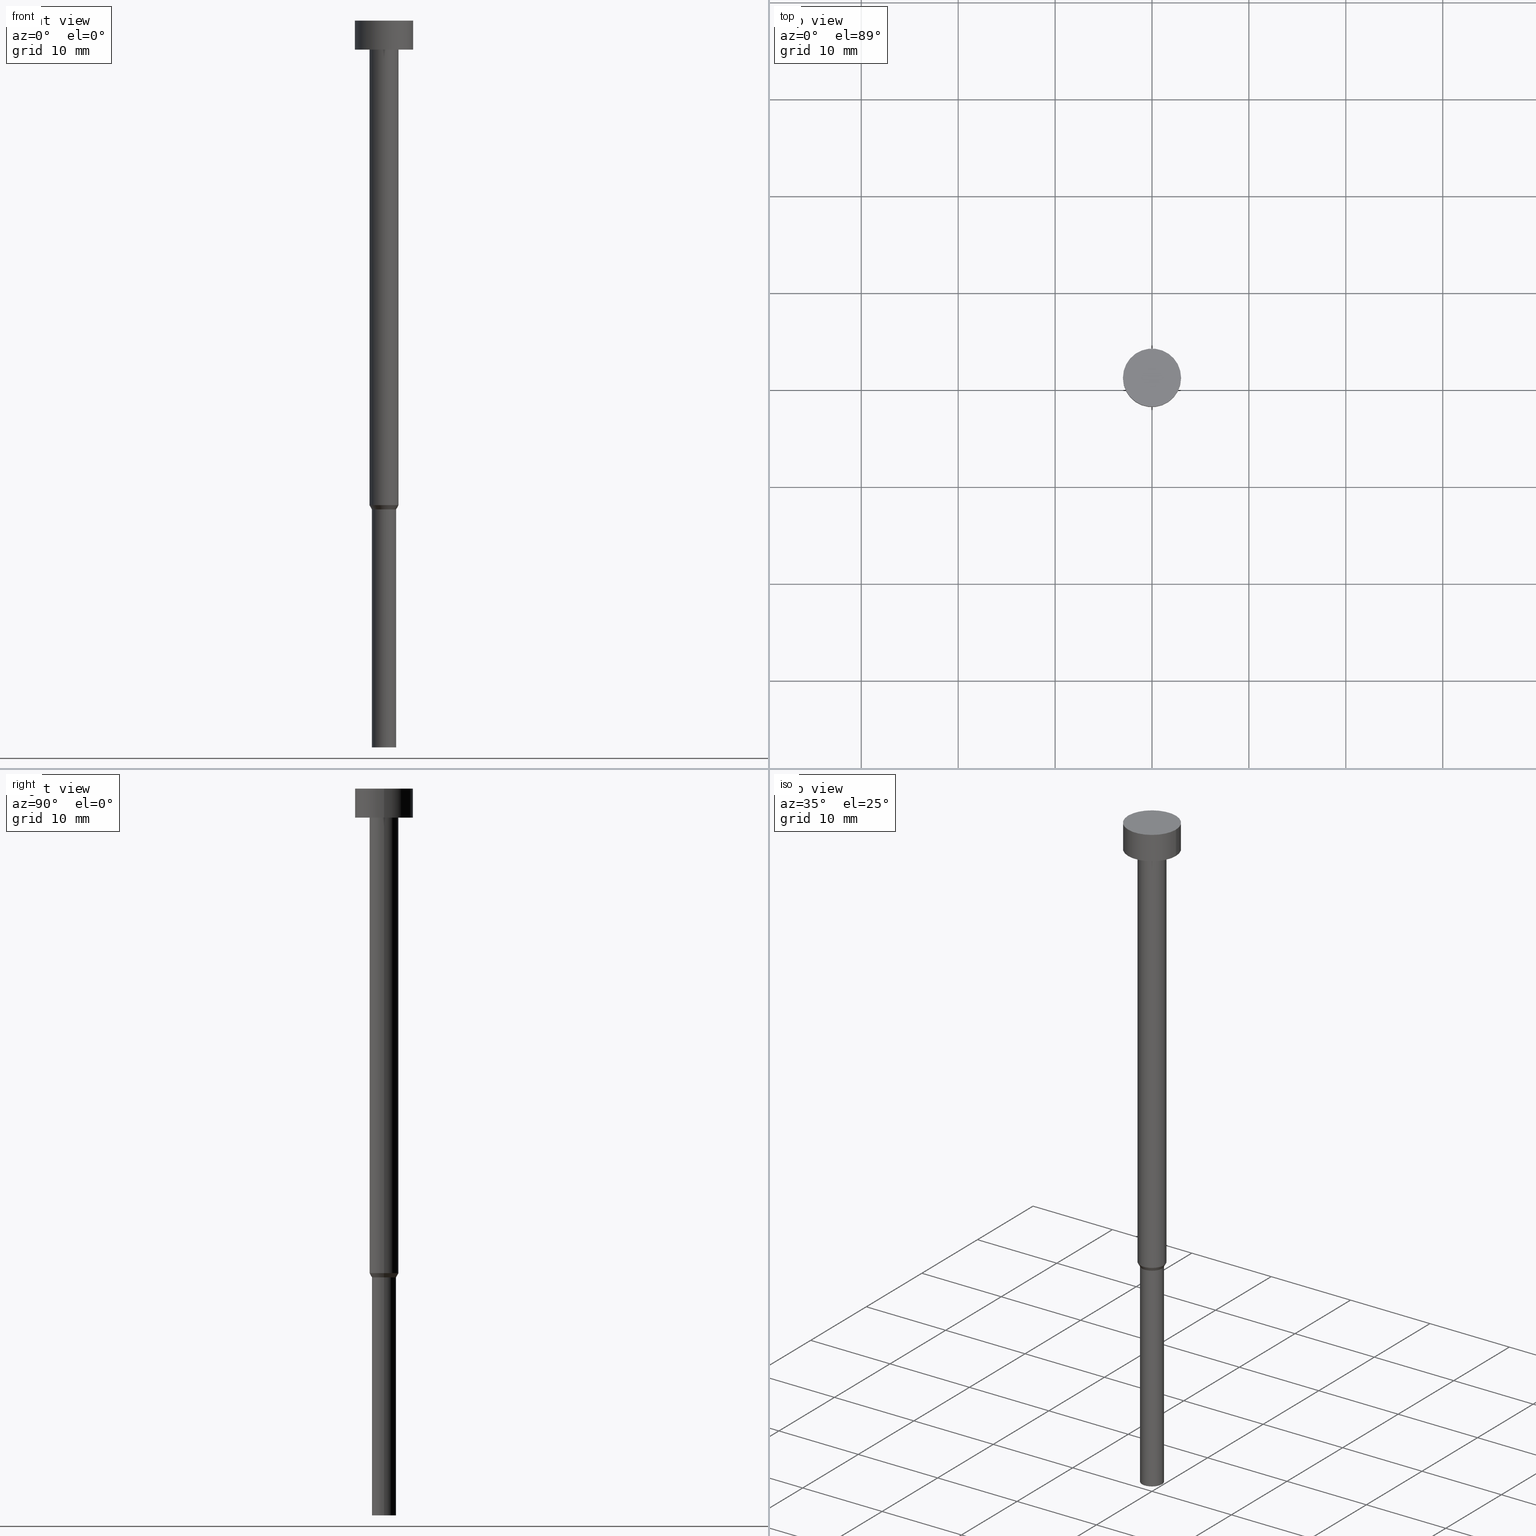
[diagram: canonical four-view strip — front | top / right | iso, engineering-drawing reading convention]
A machine part, canonical four-view strip (front | top / right | iso — engineering-drawing reading convention). The complete STEP part file that produces these views, byte-faithful:
ISO-10303-21;
HEADER;
FILE_DESCRIPTION (( 'STEP AP203' ),
    '1' );
FILE_NAME ('9650.STEP',
    '2023-02-13T08:58:49',
    ( '' ),
    ( '' ),
    'SwSTEP 2.0',
    'SolidWorks 2019',
    '' );
FILE_SCHEMA (( 'CONFIG_CONTROL_DESIGN' ));
ENDSEC;

DATA;
#1 = CARTESIAN_POINT ( 'NONE',  ( 0.000000000000000000, 0.000000000000000000, 0.000000000000000000 ) ) ;
#2 = EDGE_CURVE ( 'NONE', #63, #101, #345, .T. ) ;
#3 = APPROVAL_DATE_TIME ( #307, #30 ) ;
#4 = AXIS2_PLACEMENT_3D ( 'NONE', #23, #322, #355 ) ;
#5 = CALENDAR_DATE ( 2023, 13, 2 ) ;
#6 = COORDINATED_UNIVERSAL_TIME_OFFSET ( 1, 0, .AHEAD. ) ;
#7 = EDGE_CURVE ( 'NONE', #230, #287, #20, .T. ) ;
#8 = LINE ( 'NONE', #164, #312 ) ;
#9 = ORIENTED_EDGE ( 'NONE', *, *, #2, .T. ) ;
#10 = AXIS2_PLACEMENT_3D ( 'NONE', #84, #161, #281 ) ;
#11 = ORIENTED_EDGE ( 'NONE', *, *, #191, .T. ) ;
#12 = ADVANCED_FACE ( 'NONE', ( #92 ), #138, .T. ) ;
#13 = CYLINDRICAL_SURFACE ( 'NONE', #15, 3.000000000000000000 ) ;
#14 = CARTESIAN_POINT ( 'NONE',  ( 0.000000000000000000, 0.000000000000000000, -3.000000000000000444 ) ) ;
#15 = AXIS2_PLACEMENT_3D ( 'NONE', #198, #68, #173 ) ;
#16 = APPROVAL_ROLE ( '' ) ;
#17 = VECTOR ( 'NONE', #102, 1000.000000000000114 ) ;
#18 = DIRECTION ( 'NONE',  ( -0.000000000000000000, -0.000000000000000000, 1.000000000000000000 ) ) ;
#19 = CARTESIAN_POINT ( 'NONE',  ( 0.000000000000000000, 0.000000000000000000, -50.43301270189221697 ) ) ;
#20 = CIRCLE ( 'NONE', #35, 1.250000000000000000 ) ;
#21 = FACE_OUTER_BOUND ( 'NONE', #140, .T. ) ;
#22 = AXIS2_PLACEMENT_3D ( 'NONE', #144, #115, #258 ) ;
#23 = CARTESIAN_POINT ( 'NONE',  ( 0.000000000000000000, 0.000000000000000000, -75.00000000000000000 ) ) ;
#24 = ADVANCED_FACE ( 'NONE', ( #148 ), #13, .T. ) ;
#25 = ORIENTED_EDGE ( 'NONE', *, *, #78, .F. ) ;
#26 = CARTESIAN_POINT ( 'NONE',  ( 0.000000000000000000, 0.000000000000000000, -50.00000000000000000 ) ) ;
#27 = ORIENTED_EDGE ( 'NONE', *, *, #7, .F. ) ;
#28 = DIRECTION ( 'NONE',  ( 0.000000000000000000, -0.000000000000000000, 1.000000000000000000 ) ) ;
#29 = LOCAL_TIME ( 9, 58, 49.00000000000000000, #280 ) ;
#30 = APPROVAL ( #157, 'NEUR�EN�' ) ;
#31 = PERSON_AND_ORGANIZATION_ROLE ( 'creator' ) ;
#32 = DIRECTION ( 'NONE',  ( 1.000000000000000000, 0.000000000000000000, 0.000000000000000000 ) ) ;
#33 = FACE_OUTER_BOUND ( 'NONE', #276, .T. ) ;
#34 = ORIENTED_EDGE ( 'NONE', *, *, #116, .F. ) ;
#35 = AXIS2_PLACEMENT_3D ( 'NONE', #174, #43, #177 ) ;
#36 = AXIS2_PLACEMENT_3D ( 'NONE', #19, #208, #124 ) ;
#37 = PERSON_AND_ORGANIZATION ( #253, #245 ) ;
#38 = APPROVAL_ROLE ( '' ) ;
#39 = APPROVAL_STATUS ( 'not_yet_approved' ) ;
#40 = DIRECTION ( 'NONE',  ( 1.000000000000000000, 0.000000000000000000, 0.000000000000000000 ) ) ;
#41 = PERSON_AND_ORGANIZATION ( #253, #245 ) ;
#42 = CARTESIAN_POINT ( 'NONE',  ( 1.500000000000000000, 0.000000000000000000, -50.00000000000000000 ) ) ;
#43 = DIRECTION ( 'NONE',  ( -0.000000000000000000, -0.000000000000000000, 1.000000000000000000 ) ) ;
#44 = SECURITY_CLASSIFICATION ( '', '', #65 ) ;
#45 = CARTESIAN_POINT ( 'NONE',  ( 0.000000000000000000, 0.000000000000000000, -3.000000000000000444 ) ) ;
#46 = AXIS2_PLACEMENT_3D ( 'NONE', #311, #169, #316 ) ;
#47 = CLOSED_SHELL ( 'NONE', ( #24, #60, #12, #331, #159, #120, #289, #149, #86, #142, #64 ) ) ;
#48 = CARTESIAN_POINT ( 'NONE',  ( -1.250000000000000000, 1.530808498934191571E-16, 0.000000000000000000 ) ) ;
#49 = CIRCLE ( 'NONE', #176, 1.500000000000000000 ) ;
#50 = CARTESIAN_POINT ( 'NONE',  ( -3.000000000000000000, 3.673940397442059868E-16, 0.000000000000000000 ) ) ;
#51 = EDGE_LOOP ( 'NONE', ( #237, #234, #303, #194 ) ) ;
#52 = EDGE_CURVE ( 'NONE', #75, #332, #200, .T. ) ;
#53 = PERSON_AND_ORGANIZATION_ROLE ( 'design_owner' ) ;
#54 = ORIENTED_EDGE ( 'NONE', *, *, #191, .F. ) ;
#55 = PERSON_AND_ORGANIZATION ( #253, #245 ) ;
#56 = CARTESIAN_POINT ( 'NONE',  ( -1.500000000000000000, 1.836970198721029934E-16, -3.000000000000000444 ) ) ;
#57 = ORIENTED_EDGE ( 'NONE', *, *, #52, .T. ) ;
#58 = PERSON_AND_ORGANIZATION ( #253, #245 ) ;
#59 = CARTESIAN_POINT ( 'NONE',  ( -1.250000000000000000, 1.530808498934191571E-16, -50.43301270189221697 ) ) ;
#60 = ADVANCED_FACE ( 'NONE', ( #315 ), #150, .T. ) ;
#61 = VECTOR ( 'NONE', #351, 1000.000000000000000 ) ;
#62 =( NAMED_UNIT ( * ) SI_UNIT ( $, .STERADIAN. ) SOLID_ANGLE_UNIT ( ) );
#63 = VERTEX_POINT ( 'NONE', #203 ) ;
#64 = ADVANCED_FACE ( 'NONE', ( #299 ), #321, .T. ) ;
#65 = SECURITY_CLASSIFICATION_LEVEL ( 'unclassified' ) ;
#66 = CIRCLE ( 'NONE', #90, 3.000000000000000000 ) ;
#67 = ORIENTED_EDGE ( 'NONE', *, *, #271, .T. ) ;
#68 = DIRECTION ( 'NONE',  ( -0.000000000000000000, -0.000000000000000000, 1.000000000000000000 ) ) ;
#69 = COORDINATED_UNIVERSAL_TIME_OFFSET ( 1, 0, .AHEAD. ) ;
#70 = CIRCLE ( 'NONE', #308, 1.250000000000000000 ) ;
#71 = EDGE_CURVE ( 'NONE', #332, #310, #250, .T. ) ;
#72 = AXIS2_PLACEMENT_3D ( 'NONE', #298, #28, #130 ) ;
#73 = CARTESIAN_POINT ( 'NONE',  ( -1.250000000000000000, 1.530808498934191571E-16, -75.00000000000000000 ) ) ;
#74 = LINE ( 'NONE', #50, #282 ) ;
#75 = VERTEX_POINT ( 'NONE', #105 ) ;
#76 = DIRECTION ( 'NONE',  ( 1.000000000000000000, 0.000000000000000000, 0.000000000000000000 ) ) ;
#77 = DIRECTION ( 'NONE',  ( -0.000000000000000000, -0.000000000000000000, 1.000000000000000000 ) ) ;
#78 = EDGE_CURVE ( 'NONE', #101, #63, #66, .T. ) ;
#79 = APPLICATION_PROTOCOL_DEFINITION ( 'international standard', 'config_control_design', 1994, #184 ) ;
#80 = DATE_AND_TIME ( #5, #216 ) ;
#81 = ORIENTED_EDGE ( 'NONE', *, *, #350, .T. ) ;
#82 = EDGE_CURVE ( 'NONE', #336, #63, #74, .T. ) ;
#83 = VERTEX_POINT ( 'NONE', #318 ) ;
#84 = CARTESIAN_POINT ( 'NONE',  ( 0.000000000000000000, 0.000000000000000000, -3.000000000000000444 ) ) ;
#85 = CIRCLE ( 'NONE', #4, 1.250000000000000000 ) ;
#86 = ADVANCED_FACE ( 'NONE', ( #178, #21 ), #132, .T. ) ;
#87 = CC_DESIGN_DATE_AND_TIME_ASSIGNMENT ( #145, #93, ( #44 ) ) ;
#88 = ORIENTED_EDGE ( 'NONE', *, *, #137, .F. ) ;
#89 = ORIENTED_EDGE ( 'NONE', *, *, #212, .T. ) ;
#90 = AXIS2_PLACEMENT_3D ( 'NONE', #100, #247, #98 ) ;
#91 = VECTOR ( 'NONE', #265, 1000.000000000000000 ) ;
#92 = FACE_OUTER_BOUND ( 'NONE', #182, .T. ) ;
#93 = DATE_TIME_ROLE ( 'classification_date' ) ;
#94 = DIRECTION ( 'NONE',  ( -0.000000000000000000, -0.000000000000000000, 1.000000000000000000 ) ) ;
#95 = DIRECTION ( 'NONE',  ( -0.000000000000000000, -0.000000000000000000, 1.000000000000000000 ) ) ;
#96 = EDGE_LOOP ( 'NONE', ( #111, #57, #54, #117 ) ) ;
#97 = AXIS2_PLACEMENT_3D ( 'NONE', #338, #94, #232 ) ;
#98 = DIRECTION ( 'NONE',  ( 1.000000000000000000, 0.000000000000000000, 0.000000000000000000 ) ) ;
#99 = PRODUCT_DEFINITION ( 'NEZN�M�', '', #296, #349 ) ;
#100 = CARTESIAN_POINT ( 'NONE',  ( 0.000000000000000000, 0.000000000000000000, -3.673940397442059868E-16 ) ) ;
#101 = VERTEX_POINT ( 'NONE', #334 ) ;
#102 = DIRECTION ( 'NONE',  ( -0.5000000000000041078, 6.123233995736817805E-17, 0.8660254037844362651 ) ) ;
#103 = AXIS2_PLACEMENT_3D ( 'NONE', #220, #257, #248 ) ;
#104 = LINE ( 'NONE', #320, #284 ) ;
#105 = CARTESIAN_POINT ( 'NONE',  ( -1.500000000000000000, 1.836970198721029934E-16, -50.00000000000000000 ) ) ;
#106 = DIRECTION ( 'NONE',  ( -0.000000000000000000, -0.000000000000000000, 1.000000000000000000 ) ) ;
#107 = DATE_AND_TIME ( #277, #29 ) ;
#108 = ORIENTED_EDGE ( 'NONE', *, *, #116, .T. ) ;
#109 = CC_DESIGN_APPROVAL ( #219, ( #296 ) ) ;
#110 = CC_DESIGN_PERSON_AND_ORGANIZATION_ASSIGNMENT ( #218, #328, ( #296 ) ) ;
#111 = ORIENTED_EDGE ( 'NONE', *, *, #134, .T. ) ;
#112 = PERSON_AND_ORGANIZATION_ROLE ( 'creator' ) ;
#113 = ORIENTED_EDGE ( 'NONE', *, *, #82, .F. ) ;
#114 = PERSON_AND_ORGANIZATION ( #253, #245 ) ;
#115 = DIRECTION ( 'NONE',  ( -0.000000000000000000, -0.000000000000000000, 1.000000000000000000 ) ) ;
#116 = EDGE_CURVE ( 'NONE', #83, #336, #158, .T. ) ;
#117 = ORIENTED_EDGE ( 'NONE', *, *, #271, .F. ) ;
#118 = ORIENTED_EDGE ( 'NONE', *, *, #172, .F. ) ;
#119 = ORIENTED_EDGE ( 'NONE', *, *, #78, .T. ) ;
#120 = ADVANCED_FACE ( 'NONE', ( #188 ), #305, .T. ) ;
#121 = VECTOR ( 'NONE', #274, 1000.000000000000114 ) ;
#122 = DIRECTION ( 'NONE',  ( 1.000000000000000000, 0.000000000000000000, 0.000000000000000000 ) ) ;
#123 = FACE_OUTER_BOUND ( 'NONE', #163, .T. ) ;
#124 = DIRECTION ( 'NONE',  ( 1.000000000000000000, 0.000000000000000000, 0.000000000000000000 ) ) ;
#125 = AXIS2_PLACEMENT_3D ( 'NONE', #352, #129, #206 ) ;
#126 = VECTOR ( 'NONE', #290, 1000.000000000000000 ) ;
#127 = CIRCLE ( 'NONE', #185, 1.500000000000000000 ) ;
#128 = DIRECTION ( 'NONE',  ( -0.000000000000000000, -0.000000000000000000, 1.000000000000000000 ) ) ;
#129 = DIRECTION ( 'NONE',  ( 0.000000000000000000, 0.000000000000000000, -1.000000000000000000 ) ) ;
#130 = DIRECTION ( 'NONE',  ( 1.000000000000000000, 0.000000000000000000, 0.000000000000000000 ) ) ;
#131 = LINE ( 'NONE', #243, #17 ) ;
#132 = PLANE ( 'NONE',  #125 ) ;
#133 = VERTEX_POINT ( 'NONE', #59 ) ;
#134 = EDGE_CURVE ( 'NONE', #167, #75, #49, .T. ) ;
#135 = FACE_OUTER_BOUND ( 'NONE', #51, .T. ) ;
#136 = CARTESIAN_POINT ( 'NONE',  ( 1.500000000000000000, 0.000000000000000000, -50.00000000000000000 ) ) ;
#137 = EDGE_CURVE ( 'NONE', #192, #167, #190, .T. ) ;
#138 = CONICAL_SURFACE ( 'NONE', #229, 1.500000000000000000, 0.5235987755983037006 ) ;
#139 = AXIS2_PLACEMENT_3D ( 'NONE', #160, #213, #32 ) ;
#140 = EDGE_LOOP ( 'NONE', ( #34, #118 ) ) ;
#141 = EDGE_LOOP ( 'NONE', ( #113, #340, #89, #313 ) ) ;
#142 = ADVANCED_FACE ( 'NONE', ( #256 ), #214, .T. ) ;
#143 =( NAMED_UNIT ( * ) PLANE_ANGLE_UNIT ( ) SI_UNIT ( $, .RADIAN. ) );
#144 = CARTESIAN_POINT ( 'NONE',  ( 0.000000000000000000, 0.000000000000000000, 0.000000000000000000 ) ) ;
#145 = DATE_AND_TIME ( #231, #339 ) ;
#146 = ORIENTED_EDGE ( 'NONE', *, *, #344, .T. ) ;
#147 = CIRCLE ( 'NONE', #252, 1.500000000000000000 ) ;
#148 = FACE_OUTER_BOUND ( 'NONE', #205, .T. ) ;
#149 = ADVANCED_FACE ( 'NONE', ( #33 ), #221, .T. ) ;
#150 = CYLINDRICAL_SURFACE ( 'NONE', #209, 1.500000000000000000 ) ;
#151 = APPROVAL_PERSON_ORGANIZATION ( #55, #30, #189 ) ;
#152 = LINE ( 'NONE', #347, #61 ) ;
#153 = CARTESIAN_POINT ( 'NONE',  ( 1.500000000000000000, 0.000000000000000000, -3.000000000000000444 ) ) ;
#154 = ORIENTED_EDGE ( 'NONE', *, *, #202, .F. ) ;
#155 = ORIENTED_EDGE ( 'NONE', *, *, #82, .T. ) ;
#156 = CARTESIAN_POINT ( 'NONE',  ( 1.250000000000000000, 0.000000000000000000, -50.43301270189221697 ) ) ;
#157 = APPROVAL_STATUS ( 'not_yet_approved' ) ;
#158 = CIRCLE ( 'NONE', #10, 3.000000000000000000 ) ;
#159 = ADVANCED_FACE ( 'NONE', ( #123 ), #236, .T. ) ;
#160 = CARTESIAN_POINT ( 'NONE',  ( 0.000000000000000000, 0.000000000000000000, 0.000000000000000000 ) ) ;
#161 = DIRECTION ( 'NONE',  ( -0.000000000000000000, -0.000000000000000000, 1.000000000000000000 ) ) ;
#162 = CYLINDRICAL_SURFACE ( 'NONE', #103, 1.250000000000000000 ) ;
#163 = EDGE_LOOP ( 'NONE', ( #27, #154 ) ) ;
#164 = CARTESIAN_POINT ( 'NONE',  ( 1.250000000000000000, 0.000000000000000000, 0.000000000000000000 ) ) ;
#165 = DIRECTION ( 'NONE',  ( -0.000000000000000000, -0.000000000000000000, 1.000000000000000000 ) ) ;
#166 = AXIS2_PLACEMENT_3D ( 'NONE', #196, #261, #197 ) ;
#167 = VERTEX_POINT ( 'NONE', #42 ) ;
#168 = AXIS2_PLACEMENT_3D ( 'NONE', #348, #294, #241 ) ;
#169 = DIRECTION ( 'NONE',  ( -0.000000000000000000, -0.000000000000000000, 1.000000000000000000 ) ) ;
#170 = CC_DESIGN_APPROVAL ( #30, ( #99 ) ) ;
#171 = ORIENTED_EDGE ( 'NONE', *, *, #212, .F. ) ;
#172 = EDGE_CURVE ( 'NONE', #336, #83, #300, .T. ) ;
#173 = DIRECTION ( 'NONE',  ( 1.000000000000000000, 0.000000000000000000, 0.000000000000000000 ) ) ;
#174 = CARTESIAN_POINT ( 'NONE',  ( 0.000000000000000000, 0.000000000000000000, -75.00000000000000000 ) ) ;
#175 = ORIENTED_EDGE ( 'NONE', *, *, #207, .F. ) ;
#176 = AXIS2_PLACEMENT_3D ( 'NONE', #278, #165, #309 ) ;
#177 = DIRECTION ( 'NONE',  ( 1.000000000000000000, 0.000000000000000000, 0.000000000000000000 ) ) ;
#178 = FACE_BOUND ( 'NONE', #266, .T. ) ;
#179 = ADVANCED_BREP_SHAPE_REPRESENTATION ( '9650', ( #327, #139 ), #325 ) ;
#180 = APPROVAL_PERSON_ORGANIZATION ( #41, #319, #16 ) ;
#181 = DIRECTION ( 'NONE',  ( -0.000000000000000000, -0.000000000000000000, 1.000000000000000000 ) ) ;
#182 = EDGE_LOOP ( 'NONE', ( #81, #249, #254, #88 ) ) ;
#183 = EDGE_CURVE ( 'NONE', #75, #167, #127, .T. ) ;
#184 = APPLICATION_CONTEXT ( 'configuration controlled 3d designs of mechanical parts and assemblies' ) ;
#185 = AXIS2_PLACEMENT_3D ( 'NONE', #293, #268, #211 ) ;
#186 = MECHANICAL_CONTEXT ( 'NONE', #226, 'mechanical' ) ;
#187 = CALENDAR_DATE ( 2023, 13, 2 ) ;
#188 = FACE_OUTER_BOUND ( 'NONE', #342, .T. ) ;
#189 = APPROVAL_ROLE ( '' ) ;
#190 = LINE ( 'NONE', #136, #121 ) ;
#191 = EDGE_CURVE ( 'NONE', #310, #332, #147, .T. ) ;
#192 = VERTEX_POINT ( 'NONE', #156 ) ;
#193 = CC_DESIGN_SECURITY_CLASSIFICATION ( #44, ( #296 ) ) ;
#194 = ORIENTED_EDGE ( 'NONE', *, *, #344, .F. ) ;
#195 = PERSON_AND_ORGANIZATION ( #253, #245 ) ;
#196 = CARTESIAN_POINT ( 'NONE',  ( 0.000000000000000000, 0.000000000000000000, -75.00000000000000000 ) ) ;
#197 = DIRECTION ( 'NONE',  ( -1.000000000000000000, 0.000000000000000000, -0.000000000000000000 ) ) ;
#198 = CARTESIAN_POINT ( 'NONE',  ( 0.000000000000000000, 0.000000000000000000, 0.000000000000000000 ) ) ;
#199 = LOCAL_TIME ( 9, 58, 49.00000000000000000, #304 ) ;
#200 = LINE ( 'NONE', #314, #126 ) ;
#201 = APPROVAL_DATE_TIME ( #228, #319 ) ;
#202 = EDGE_CURVE ( 'NONE', #287, #230, #85, .T. ) ;
#203 = CARTESIAN_POINT ( 'NONE',  ( -3.000000000000000000, 3.673940397442059868E-16, -3.673940397442059868E-16 ) ) ;
#204 = EDGE_LOOP ( 'NONE', ( #335, #353, #343, #225 ) ) ;
#205 = EDGE_LOOP ( 'NONE', ( #108, #155, #25, #171 ) ) ;
#206 = DIRECTION ( 'NONE',  ( -1.000000000000000000, 0.000000000000000000, -0.000000000000000000 ) ) ;
#207 = EDGE_CURVE ( 'NONE', #287, #133, #239, .T. ) ;
#208 = DIRECTION ( 'NONE',  ( -0.000000000000000000, -0.000000000000000000, 1.000000000000000000 ) ) ;
#209 = AXIS2_PLACEMENT_3D ( 'NONE', #263, #18, #122 ) ;
#210 = AXIS2_PLACEMENT_3D ( 'NONE', #1, #106, #217 ) ;
#211 = DIRECTION ( 'NONE',  ( 1.000000000000000000, 0.000000000000000000, 0.000000000000000000 ) ) ;
#212 = EDGE_CURVE ( 'NONE', #83, #101, #152, .T. ) ;
#213 = DIRECTION ( 'NONE',  ( 0.000000000000000000, 0.000000000000000000, 1.000000000000000000 ) ) ;
#214 = CYLINDRICAL_SURFACE ( 'NONE', #22, 3.000000000000000000 ) ;
#215 = DIRECTION ( 'NONE',  ( 1.000000000000000000, 0.000000000000000000, 0.000000000000000000 ) ) ;
#216 = LOCAL_TIME ( 9, 58, 49.00000000000000000, #6 ) ;
#217 = DIRECTION ( 'NONE',  ( 1.000000000000000000, 0.000000000000000000, 0.000000000000000000 ) ) ;
#218 = PERSON_AND_ORGANIZATION ( #253, #245 ) ;
#219 = APPROVAL ( #326, 'NEUR�EN�' ) ;
#220 = CARTESIAN_POINT ( 'NONE',  ( 0.000000000000000000, 0.000000000000000000, 0.000000000000000000 ) ) ;
#221 = CYLINDRICAL_SURFACE ( 'NONE', #97, 1.500000000000000000 ) ;
#222 = CARTESIAN_POINT ( 'NONE',  ( -3.000000000000000000, 3.673940397442059868E-16, -3.000000000000000444 ) ) ;
#223 = AXIS2_PLACEMENT_3D ( 'NONE', #14, #295, #270 ) ;
#224 = LOCAL_TIME ( 9, 58, 49.00000000000000000, #288 ) ;
#225 = ORIENTED_EDGE ( 'NONE', *, *, #183, .F. ) ;
#226 = APPLICATION_CONTEXT ( 'configuration controlled 3d designs of mechanical parts and assemblies' ) ;
#227 = CC_DESIGN_DATE_AND_TIME_ASSIGNMENT ( #107, #251, ( #99 ) ) ;
#228 = DATE_AND_TIME ( #283, #224 ) ;
#229 = AXIS2_PLACEMENT_3D ( 'NONE', #285, #95, #40 ) ;
#230 = VERTEX_POINT ( 'NONE', #240 ) ;
#231 = CALENDAR_DATE ( 2023, 13, 2 ) ;
#232 = DIRECTION ( 'NONE',  ( 1.000000000000000000, 0.000000000000000000, 0.000000000000000000 ) ) ;
#233 = PRODUCT ( '9650', '9650', '', ( #186 ) ) ;
#234 = ORIENTED_EDGE ( 'NONE', *, *, #207, .T. ) ;
#235 = SHAPE_DEFINITION_REPRESENTATION ( #291, #179 ) ;
#236 = PLANE ( 'NONE',  #166 ) ;
#237 = ORIENTED_EDGE ( 'NONE', *, *, #7, .T. ) ;
#238 = APPROVAL_PERSON_ORGANIZATION ( #37, #219, #38 ) ;
#239 = LINE ( 'NONE', #48, #91 ) ;
#240 = CARTESIAN_POINT ( 'NONE',  ( 1.250000000000000000, 0.000000000000000000, -75.00000000000000000 ) ) ;
#241 = DIRECTION ( 'NONE',  ( 1.000000000000000000, 0.000000000000000000, 0.000000000000000000 ) ) ;
#242 = ORIENTED_EDGE ( 'NONE', *, *, #71, .F. ) ;
#243 = CARTESIAN_POINT ( 'NONE',  ( -1.500000000000000000, 1.836970198721029934E-16, -50.00000000000000000 ) ) ;
#244 = CC_DESIGN_PERSON_AND_ORGANIZATION_ASSIGNMENT ( #58, #31, ( #99 ) ) ;
#245 = ORGANIZATION ( 'NEUR�EN�', 'NEUR�EN�', '' ) ;
#246 = CARTESIAN_POINT ( 'NONE',  ( 0.000000000000000000, 0.000000000000000000, -50.43301270189221697 ) ) ;
#247 = DIRECTION ( 'NONE',  ( -0.000000000000000000, -0.000000000000000000, 1.000000000000000000 ) ) ;
#248 = DIRECTION ( 'NONE',  ( 1.000000000000000000, 0.000000000000000000, 0.000000000000000000 ) ) ;
#249 = ORIENTED_EDGE ( 'NONE', *, *, #324, .T. ) ;
#250 = CIRCLE ( 'NONE', #168, 1.500000000000000000 ) ;
#251 = DATE_TIME_ROLE ( 'creation_date' ) ;
#252 = AXIS2_PLACEMENT_3D ( 'NONE', #45, #128, #76 ) ;
#253 = PERSON ( 'NEUR�EN�', 'NEUR�EN�', 'NEUR�EN�', ('NEUR�EN�'), ('NEUR�EN�'), ('NEUR�EN�') ) ;
#254 = ORIENTED_EDGE ( 'NONE', *, *, #134, .F. ) ;
#255 = APPLICATION_PROTOCOL_DEFINITION ( 'international standard', 'config_control_design', 1994, #226 ) ;
#256 = FACE_OUTER_BOUND ( 'NONE', #141, .T. ) ;
#257 = DIRECTION ( 'NONE',  ( -0.000000000000000000, -0.000000000000000000, 1.000000000000000000 ) ) ;
#258 = DIRECTION ( 'NONE',  ( 1.000000000000000000, 0.000000000000000000, 0.000000000000000000 ) ) ;
#259 = ORIENTED_EDGE ( 'NONE', *, *, #202, .T. ) ;
#260 = AXIS2_PLACEMENT_3D ( 'NONE', #26, #181, #297 ) ;
#261 = DIRECTION ( 'NONE',  ( 0.000000000000000000, 0.000000000000000000, -1.000000000000000000 ) ) ;
#262 = PERSON_AND_ORGANIZATION ( #253, #245 ) ;
#263 = CARTESIAN_POINT ( 'NONE',  ( 0.000000000000000000, 0.000000000000000000, 0.000000000000000000 ) ) ;
#264 = EDGE_CURVE ( 'NONE', #133, #192, #346, .T. ) ;
#265 = DIRECTION ( 'NONE',  ( -0.000000000000000000, -0.000000000000000000, 1.000000000000000000 ) ) ;
#266 = EDGE_LOOP ( 'NONE', ( #11, #286 ) ) ;
#267 = CONICAL_SURFACE ( 'NONE', #260, 1.500000000000000000, 0.5235987755983037006 ) ;
#268 = DIRECTION ( 'NONE',  ( -0.000000000000000000, -0.000000000000000000, 1.000000000000000000 ) ) ;
#269 = ORIENTED_EDGE ( 'NONE', *, *, #183, .T. ) ;
#270 = DIRECTION ( 'NONE',  ( 1.000000000000000000, 0.000000000000000000, 0.000000000000000000 ) ) ;
#271 = EDGE_CURVE ( 'NONE', #167, #310, #104, .T. ) ;
#272 = DIRECTION ( 'NONE',  ( -0.000000000000000000, -0.000000000000000000, 1.000000000000000000 ) ) ;
#273 =( LENGTH_UNIT ( ) NAMED_UNIT ( * ) SI_UNIT ( .MILLI., .METRE. ) );
#274 = DIRECTION ( 'NONE',  ( 0.5000000000000041078, 0.000000000000000000, 0.8660254037844362651 ) ) ;
#275 = CC_DESIGN_PERSON_AND_ORGANIZATION_ASSIGNMENT ( #262, #341, ( #44 ) ) ;
#276 = EDGE_LOOP ( 'NONE', ( #337, #269, #67, #242 ) ) ;
#277 = CALENDAR_DATE ( 2023, 13, 2 ) ;
#278 = CARTESIAN_POINT ( 'NONE',  ( 0.000000000000000000, 0.000000000000000000, -50.00000000000000000 ) ) ;
#279 = PRODUCT_RELATED_PRODUCT_CATEGORY ( 'detail', '', ( #233 ) ) ;
#280 = COORDINATED_UNIVERSAL_TIME_OFFSET ( 1, 0, .AHEAD. ) ;
#281 = DIRECTION ( 'NONE',  ( 1.000000000000000000, 0.000000000000000000, 0.000000000000000000 ) ) ;
#282 = VECTOR ( 'NONE', #77, 1000.000000000000000 ) ;
#283 = CALENDAR_DATE ( 2023, 13, 2 ) ;
#284 = VECTOR ( 'NONE', #272, 1000.000000000000000 ) ;
#285 = CARTESIAN_POINT ( 'NONE',  ( 0.000000000000000000, 0.000000000000000000, -50.00000000000000000 ) ) ;
#286 = ORIENTED_EDGE ( 'NONE', *, *, #71, .T. ) ;
#287 = VERTEX_POINT ( 'NONE', #73 ) ;
#288 = COORDINATED_UNIVERSAL_TIME_OFFSET ( 1, 0, .AHEAD. ) ;
#289 = ADVANCED_FACE ( 'NONE', ( #323 ), #267, .T. ) ;
#290 = DIRECTION ( 'NONE',  ( -0.000000000000000000, -0.000000000000000000, 1.000000000000000000 ) ) ;
#291 = PRODUCT_DEFINITION_SHAPE ( 'NONE', 'NONE',  #99 ) ;
#292 = UNCERTAINTY_MEASURE_WITH_UNIT (LENGTH_MEASURE( 1.000000000000000082E-05 ), #273, 'distance_accuracy_value', 'NONE');
#293 = CARTESIAN_POINT ( 'NONE',  ( 0.000000000000000000, 0.000000000000000000, -50.00000000000000000 ) ) ;
#294 = DIRECTION ( 'NONE',  ( -0.000000000000000000, -0.000000000000000000, 1.000000000000000000 ) ) ;
#295 = DIRECTION ( 'NONE',  ( -0.000000000000000000, -0.000000000000000000, 1.000000000000000000 ) ) ;
#296 = PRODUCT_DEFINITION_FORMATION_WITH_SPECIFIED_SOURCE ( 'LIBOVOLN�', '', #233, .NOT_KNOWN. ) ;
#297 = DIRECTION ( 'NONE',  ( 1.000000000000000000, 0.000000000000000000, 0.000000000000000000 ) ) ;
#298 = CARTESIAN_POINT ( 'NONE',  ( 0.000000000000000000, 0.000000000000000000, -1.836970198721029934E-16 ) ) ;
#299 = FACE_OUTER_BOUND ( 'NONE', #329, .T. ) ;
#300 = CIRCLE ( 'NONE', #223, 3.000000000000000000 ) ;
#301 = CC_DESIGN_PERSON_AND_ORGANIZATION_ASSIGNMENT ( #114, #112, ( #296 ) ) ;
#302 = APPROVAL_DATE_TIME ( #80, #219 ) ;
#303 = ORIENTED_EDGE ( 'NONE', *, *, #350, .F. ) ;
#304 = COORDINATED_UNIVERSAL_TIME_OFFSET ( 1, 0, .AHEAD. ) ;
#305 = CYLINDRICAL_SURFACE ( 'NONE', #210, 1.250000000000000000 ) ;
#306 = ORIENTED_EDGE ( 'NONE', *, *, #264, .F. ) ;
#307 = DATE_AND_TIME ( #187, #199 ) ;
#308 = AXIS2_PLACEMENT_3D ( 'NONE', #246, #333, #215 ) ;
#309 = DIRECTION ( 'NONE',  ( 1.000000000000000000, 0.000000000000000000, 0.000000000000000000 ) ) ;
#310 = VERTEX_POINT ( 'NONE', #153 ) ;
#311 = CARTESIAN_POINT ( 'NONE',  ( 0.000000000000000000, 0.000000000000000000, -3.673940397442059868E-16 ) ) ;
#312 = VECTOR ( 'NONE', #330, 1000.000000000000000 ) ;
#313 = ORIENTED_EDGE ( 'NONE', *, *, #2, .F. ) ;
#314 = CARTESIAN_POINT ( 'NONE',  ( -1.500000000000000000, 1.836970198721029934E-16, 0.000000000000000000 ) ) ;
#315 = FACE_OUTER_BOUND ( 'NONE', #96, .T. ) ;
#316 = DIRECTION ( 'NONE',  ( 1.000000000000000000, 0.000000000000000000, 0.000000000000000000 ) ) ;
#317 = CC_DESIGN_PERSON_AND_ORGANIZATION_ASSIGNMENT ( #195, #53, ( #233 ) ) ;
#318 = CARTESIAN_POINT ( 'NONE',  ( 3.000000000000000000, 0.000000000000000000, -3.000000000000000444 ) ) ;
#319 = APPROVAL ( #39, 'NEUR�EN�' ) ;
#320 = CARTESIAN_POINT ( 'NONE',  ( 1.500000000000000000, 0.000000000000000000, 0.000000000000000000 ) ) ;
#321 = PLANE ( 'NONE',  #72 ) ;
#322 = DIRECTION ( 'NONE',  ( -0.000000000000000000, -0.000000000000000000, 1.000000000000000000 ) ) ;
#323 = FACE_OUTER_BOUND ( 'NONE', #204, .T. ) ;
#324 = EDGE_CURVE ( 'NONE', #133, #75, #131, .T. ) ;
#325 =( GEOMETRIC_REPRESENTATION_CONTEXT ( 3 ) GLOBAL_UNCERTAINTY_ASSIGNED_CONTEXT ( ( #292 ) ) GLOBAL_UNIT_ASSIGNED_CONTEXT ( ( #273, #143, #62 ) ) REPRESENTATION_CONTEXT ( 'NONE', 'WORKASPACE' ) );
#326 = APPROVAL_STATUS ( 'not_yet_approved' ) ;
#327 = MANIFOLD_SOLID_BREP ( 'Rotovat1', #47 ) ;
#328 = PERSON_AND_ORGANIZATION_ROLE ( 'design_supplier' ) ;
#329 = EDGE_LOOP ( 'NONE', ( #119, #9 ) ) ;
#330 = DIRECTION ( 'NONE',  ( -0.000000000000000000, -0.000000000000000000, 1.000000000000000000 ) ) ;
#331 = ADVANCED_FACE ( 'NONE', ( #135 ), #162, .T. ) ;
#332 = VERTEX_POINT ( 'NONE', #56 ) ;
#333 = DIRECTION ( 'NONE',  ( -0.000000000000000000, -0.000000000000000000, 1.000000000000000000 ) ) ;
#334 = CARTESIAN_POINT ( 'NONE',  ( 3.000000000000000000, 0.000000000000000000, -3.673940397442059868E-16 ) ) ;
#335 = ORIENTED_EDGE ( 'NONE', *, *, #324, .F. ) ;
#336 = VERTEX_POINT ( 'NONE', #222 ) ;
#337 = ORIENTED_EDGE ( 'NONE', *, *, #52, .F. ) ;
#338 = CARTESIAN_POINT ( 'NONE',  ( 0.000000000000000000, 0.000000000000000000, 0.000000000000000000 ) ) ;
#339 = LOCAL_TIME ( 9, 58, 49.00000000000000000, #69 ) ;
#340 = ORIENTED_EDGE ( 'NONE', *, *, #172, .T. ) ;
#341 = PERSON_AND_ORGANIZATION_ROLE ( 'classification_officer' ) ;
#342 = EDGE_LOOP ( 'NONE', ( #175, #259, #146, #306 ) ) ;
#343 = ORIENTED_EDGE ( 'NONE', *, *, #137, .T. ) ;
#344 = EDGE_CURVE ( 'NONE', #230, #192, #8, .T. ) ;
#345 = CIRCLE ( 'NONE', #46, 3.000000000000000000 ) ;
#346 = CIRCLE ( 'NONE', #36, 1.250000000000000000 ) ;
#347 = CARTESIAN_POINT ( 'NONE',  ( 3.000000000000000000, 0.000000000000000000, 0.000000000000000000 ) ) ;
#348 = CARTESIAN_POINT ( 'NONE',  ( 0.000000000000000000, 0.000000000000000000, -3.000000000000000444 ) ) ;
#349 = DESIGN_CONTEXT ( 'detailed design', #184, 'design' ) ;
#350 = EDGE_CURVE ( 'NONE', #192, #133, #70, .T. ) ;
#351 = DIRECTION ( 'NONE',  ( -0.000000000000000000, -0.000000000000000000, 1.000000000000000000 ) ) ;
#352 = CARTESIAN_POINT ( 'NONE',  ( 0.000000000000000000, -3.000000000000000000, -3.000000000000000444 ) ) ;
#353 = ORIENTED_EDGE ( 'NONE', *, *, #264, .T. ) ;
#354 = CC_DESIGN_APPROVAL ( #319, ( #44 ) ) ;
#355 = DIRECTION ( 'NONE',  ( 1.000000000000000000, 0.000000000000000000, 0.000000000000000000 ) ) ;
ENDSEC;
END-ISO-10303-21;
